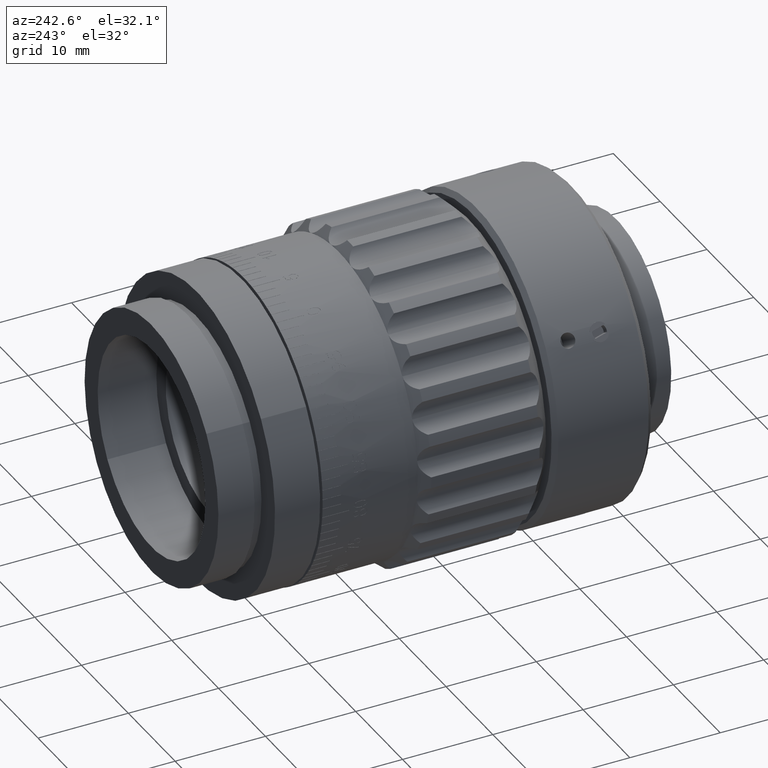
[diagram: clean part render]
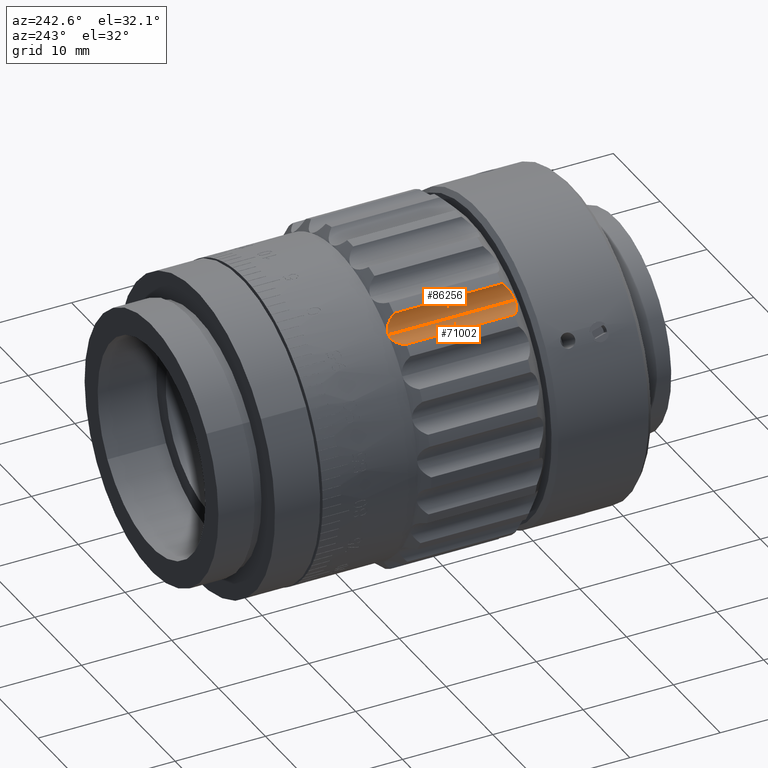
[diagram: same view with one multi-face feature highlighted, each face labeled with its STEP entity id]
A machine part, auxiliary view. The highlighted faces form ONE feature: a constant-radius fillet chain: 2 tangent blend faces with common blend radius 2 mm. The faces share edges in the B-rep.
Their STEP definitions:
[1] entity #71002 (Cylinder):
#9360 = LINE ( 'NONE', #52286, #81370 ) ;
#9796 = CARTESIAN_POINT ( 'NONE',  ( 16.63223147879429200, -27.21457821189756700, 6.199304480004530000 ) ) ;
#10090 = CARTESIAN_POINT ( 'NONE',  ( 16.16684370180052000, -14.48691178602993000, 5.328942705651685200 ) ) ;
#16118 = VECTOR ( 'NONE', #60525, 1000.000000000000000 ) ;
#17869 = CARTESIAN_POINT ( 'NONE',  ( 16.12161518754022200, -28.06311760304939200, 5.075327911002053000 ) ) ;
#18165 = CARTESIAN_POINT ( 'NONE',  ( 16.29970080731079900, -14.73653600034823800, 5.714012198316787300 ) ) ;
#18227 = CARTESIAN_POINT ( 'NONE',  ( 16.14847317714595600, -27.98511982904807400, 5.247368861514579500 ) ) ;
#18587 = CARTESIAN_POINT ( 'NONE',  ( 16.17925759034183000, -28.21457821189758500, 4.335219005467396700 ) ) ;
#24990 = DIRECTION ( 'NONE',  ( -0.9659258262890654300, 0.0000000000000000000, -0.2588190451025317900 ) ) ;
#26715 = CARTESIAN_POINT ( 'NONE',  ( 16.63223147879429200, -27.21457821189756700, 6.199304480004530000 ) ) ;
#29668 = ORIENTED_EDGE ( 'NONE', *, *, #34601, .F. ) ;
#33959 = CARTESIAN_POINT ( 'NONE',  ( 16.30037051080029500, -27.69155641625259500, 5.715310066604062400 ) ) ;
#34601 = EDGE_CURVE ( 'NONE', #100273, #102325, #88126, .T. ) ;
#36076 = CARTESIAN_POINT ( 'NONE',  ( 16.10784620434581200, -14.24627218124597100, 4.710899091893692200 ) ) ;
#40339 = VERTEX_POINT ( 'NONE', #26715 ) ;
#43127 = CARTESIAN_POINT ( 'NONE',  ( 16.23653850272437900, -27.79990188415146000, 5.569526982910725900 ) ) ;
#43410 = CARTESIAN_POINT ( 'NONE',  ( 16.12150813431316700, -14.36565298824324600, 5.074383856499653500 ) ) ;
#43477 = CARTESIAN_POINT ( 'NONE',  ( 16.10965957065909700, -28.15453043203921300, 4.802510653893822500 ) ) ;
#43847 = CARTESIAN_POINT ( 'NONE',  ( 16.13637495163443000, -28.20678417268108300, 4.522143724562461400 ) ) ;
#44237 = ORIENTED_EDGE ( 'NONE', *, *, #59485, .T. ) ;
#50212 = FACE_OUTER_BOUND ( 'NONE', #70083, .T. ) ;
#51571 = DIRECTION ( 'NONE',  ( -0.0000000000000000000, -1.000000000000000000, 0.0000000000000000000 ) ) ;
#51864 = CARTESIAN_POINT ( 'NONE',  ( 16.15464997671329100, -28.21457821189758900, 4.427055869782145200 ) ) ;
#52236 = CARTESIAN_POINT ( 'NONE',  ( 16.63223147879429600, -15.21457821189761400, 6.199304480004522900 ) ) ;
#52286 = CARTESIAN_POINT ( 'NONE',  ( 16.63223147879429200, -15.71457821189758300, 6.199304480004530900 ) ) ;
#52519 = CARTESIAN_POINT ( 'NONE',  ( 16.63223147879429600, -15.21457821189761400, 6.199304480004522900 ) ) ;
#53712 = B_SPLINE_CURVE_WITH_KNOTS ( 'NONE', 3,
 ( #64253, #81072, #36076, #77050, #43410, #74839, #10090, #102975, #18165, #77408, #94248, #52519 ),
 .UNSPECIFIED., .F., .F.,
 ( 4, 2, 2, 2, 2, 4 ),
 ( 0.002265277880669161300, 0.002830728109696412800, 0.003113453224210037700, 0.003396178338723663000, 0.003961628567750910500, 0.004527078796778158600 ),
 .UNSPECIFIED. ) ;
#54879 = VERTEX_POINT ( 'NONE', #52236 ) ;
#59196 = CARTESIAN_POINT ( 'NONE',  ( 16.53586250469498300, -27.34184645103451000, 6.093457096285350300 ) ) ;
#59485 = EDGE_CURVE ( 'NONE', #100273, #54879, #53712, .T. ) ;
#60525 = DIRECTION ( 'NONE',  ( -0.0000000000000000000, -1.000000000000000000, 0.0000000000000000000 ) ) ;
#60752 = CARTESIAN_POINT ( 'NONE',  ( 16.17925759034183000, -14.21457821189758700, 4.335219005467397600 ) ) ;
#64253 = CARTESIAN_POINT ( 'NONE',  ( 16.17925759034183000, -14.21457821189758700, 4.335219005467397600 ) ) ;
#67555 = ORIENTED_EDGE ( 'NONE', *, *, #94127, .T. ) ;
#67604 = CARTESIAN_POINT ( 'NONE',  ( 16.16709489081064900, -27.94165989775723000, 5.330053067588321100 ) ) ;
#68276 = ORIENTED_EDGE ( 'NONE', *, *, #75364, .T. ) ;
#68336 = CARTESIAN_POINT ( 'NONE',  ( 16.11397742356230000, -28.17661992392366700, 4.709988795762752600 ) ) ;
#68697 = CARTESIAN_POINT ( 'NONE',  ( 16.44964314242536600, -27.46322429761790900, 5.976302813085801800 ) ) ;
#70083 = EDGE_LOOP ( 'NONE', ( #29668, #44237, #68276, #67555 ) ) ;
#71002 = ADVANCED_FACE ( 'NONE', ( #50212 ), #96013, .F. ) ;
#74839 = CARTESIAN_POINT ( 'NONE',  ( 16.14829987043804100, -14.44360746031680000, 5.246514363392902800 ) ) ;
#75364 = EDGE_CURVE ( 'NONE', #54879, #40339, #9360, .T. ) ;
#77050 = CARTESIAN_POINT ( 'NONE',  ( 16.11334848507358000, -14.33096256588668100, 4.984217948090310400 ) ) ;
#77408 = CARTESIAN_POINT ( 'NONE',  ( 16.44948636153144200, -14.96573169895844700, 5.976154933047973300 ) ) ;
#78289 = AXIS2_PLACEMENT_3D ( 'NONE', #82448, #107672, #24990 ) ;
#79612 = B_SPLINE_CURVE_WITH_KNOTS ( 'NONE', 3,
 ( #9796, #59196, #68697, #33959, #43127, #67604, #18227, #17869, #101592, #43477, #68336, #43847, #51864, #18587 ),
 .UNSPECIFIED., .F., .F.,
 ( 4, 2, 2, 2, 2, 2, 4 ),
 ( 2.966078197712893400E-007, 0.0005665419260321120400, 0.001132787244244452700, 0.001415909903350626900, 0.001699032562456801000, 0.001982155221562975200, 0.002265277880669149600 ),
 .UNSPECIFIED. ) ;
#81072 = CARTESIAN_POINT ( 'NONE',  ( 16.13011146828293000, -14.21457821189758900, 4.518634829986212700 ) ) ;
#81370 = VECTOR ( 'NONE', #51571, 1000.000000000000000 ) ;
#81889 = CARTESIAN_POINT ( 'NONE',  ( 16.17925759034183000, -28.21457821189758500, 4.335219005467396700 ) ) ;
#82448 = CARTESIAN_POINT ( 'NONE',  ( 18.11110924291996200, -2.714578211897588300, 4.852857095672460400 ) ) ;
#88126 = LINE ( 'NONE', #102193, #16118 ) ;
#94127 = EDGE_CURVE ( 'NONE', #40339, #102325, #79612, .T. ) ;
#94248 = CARTESIAN_POINT ( 'NONE',  ( 16.53588253322231700, -15.08733642313465700, 6.093479094726634800 ) ) ;
#96013 = CYLINDRICAL_SURFACE ( 'NONE', #78289, 2.000000000000001300 ) ;
#100273 = VERTEX_POINT ( 'NONE', #60752 ) ;
#101592 = CARTESIAN_POINT ( 'NONE',  ( 16.11339678656624100, -28.09789642735480100, 4.985070924457826200 ) ) ;
#102193 = CARTESIAN_POINT ( 'NONE',  ( 16.17925759034183000, -2.714578211897588300, 4.335219005467396700 ) ) ;
#102325 = VERTEX_POINT ( 'NONE', #81889 ) ;
#102975 = CARTESIAN_POINT ( 'NONE',  ( 16.23568092375133900, -14.62764577598170100, 5.567050787408364300 ) ) ;
#107672 = DIRECTION ( 'NONE',  ( -0.0000000000000000000, -1.000000000000000000, 0.0000000000000000000 ) ) ;
[2] entity #86256 (Cylinder):
#1303 = DIRECTION ( 'NONE',  ( 0.0000000000000000000, 1.000000000000000000, -0.0000000000000000000 ) ) ;
#6298 = CARTESIAN_POINT ( 'NONE',  ( 17.23396025107167500, -14.96593212617727000, 3.049191514372357600 ) ) ;
#7007 = CARTESIAN_POINT ( 'NONE',  ( 16.84601830433874900, -14.62925453964371900, 3.294917397098975400 ) ) ;
#8897 = B_SPLINE_CURVE_WITH_KNOTS ( 'NONE', 3,
 ( #48733, #57147, #6298, #73631, #7007, #30838, #82014, #106510, #15107, #106144, #107236, #80945, #90093, #64480 ),
 .UNSPECIFIED., .F., .F.,
 ( 4, 2, 2, 2, 2, 2, 4 ),
 ( 2.966078197780171100E-007, 0.0005665419260321249500, 0.001132787244244472000, 0.001415909903350643800, 0.001699032562456815300, 0.001982155221562988200, 0.002265277880669161300 ),
 .UNSPECIFIED. ) ;
#9988 = CARTESIAN_POINT ( 'NONE',  ( 16.30525355916298500, -28.18288424254920700, 3.974164813928291500 ) ) ;
#10753 = ORIENTED_EDGE ( 'NONE', *, *, #65712, .T. ) ;
#15107 = CARTESIAN_POINT ( 'NONE',  ( 16.44714642065374100, -14.33125999644037300, 3.739500333035834500 ) ) ;
#16118 = VECTOR ( 'NONE', #60525, 1000.000000000000000 ) ;
#16684 = B_SPLINE_CURVE_WITH_KNOTS ( 'NONE', 3,
 ( #59025, #83523, #9988, #42223, #101427, #100698, #93045, #75860, #50595, #59384, #68159, #51697 ),
 .UNSPECIFIED., .F., .F.,
 ( 4, 2, 2, 2, 2, 4 ),
 ( 0.002265277880669149600, 0.002830728109696402400, 0.003113453224210026800, 0.003396178338723652100, 0.003961628567750896700, 0.004527078796778142100 ),
 .UNSPECIFIED. ) ;
#30838 = CARTESIAN_POINT ( 'NONE',  ( 16.66614141462970600, -14.48749652603793300, 3.467586085355032200 ) ) ;
#31033 = FACE_OUTER_BOUND ( 'NONE', #87602, .T. ) ;
#33153 = DIRECTION ( 'NONE',  ( -0.9659258262890654300, 0.0000000000000000000, -0.2588190451025317900 ) ) ;
#33878 = DIRECTION ( 'NONE',  ( -0.0000000000000000000, -1.000000000000000000, 0.0000000000000000000 ) ) ;
#34601 = EDGE_CURVE ( 'NONE', #100273, #102325, #88126, .T. ) ;
#37619 = VECTOR ( 'NONE', #1303, 1000.000000000000000 ) ;
#39496 = AXIS2_PLACEMENT_3D ( 'NONE', #41580, #33878, #33153 ) ;
#41580 = CARTESIAN_POINT ( 'NONE',  ( 18.11110924291996200, -2.714578211897588300, 4.852857095672460400 ) ) ;
#42223 = CARTESIAN_POINT ( 'NONE',  ( 16.44667810215028700, -28.09819385790849500, 3.740214881492595300 ) ) ;
#48733 = CARTESIAN_POINT ( 'NONE',  ( 17.50358722226128100, -15.21457821189761400, 2.947360573918934800 ) ) ;
#50595 = CARTESIAN_POINT ( 'NONE',  ( 16.97296107237519900, -27.69262042344693600, 3.201370682379270700 ) ) ;
#51697 = CARTESIAN_POINT ( 'NONE',  ( 17.50358722226128100, -27.21457821189756700, 2.947360573918931700 ) ) ;
#54297 = ORIENTED_EDGE ( 'NONE', *, *, #96825, .T. ) ;
#54567 = VERTEX_POINT ( 'NONE', #86127 ) ;
#57147 = CARTESIAN_POINT ( 'NONE',  ( 17.36720555069503600, -15.08730997276066600, 2.990842610094197600 ) ) ;
#58589 = LINE ( 'NONE', #101514, #37619 ) ;
#59025 = CARTESIAN_POINT ( 'NONE',  ( 16.17925759034183000, -28.21457821189758500, 4.335219005467396700 ) ) ;
#59384 = CARTESIAN_POINT ( 'NONE',  ( 17.23375053481580800, -27.46342472483674500, 3.049241191794865200 ) ) ;
#60525 = DIRECTION ( 'NONE',  ( -0.0000000000000000000, -1.000000000000000000, 0.0000000000000000000 ) ) ;
#60752 = CARTESIAN_POINT ( 'NONE',  ( 16.17925759034183000, -14.21457821189758700, 4.335219005467397600 ) ) ;
#64480 = CARTESIAN_POINT ( 'NONE',  ( 16.17925759034183000, -14.21457821189758700, 4.335219005467397600 ) ) ;
#65712 = EDGE_CURVE ( 'NONE', #102325, #54567, #16684, .T. ) ;
#68159 = CARTESIAN_POINT ( 'NONE',  ( 17.36723389512915000, -27.34182000066051900, 2.990833573148871800 ) ) ;
#71947 = CARTESIAN_POINT ( 'NONE',  ( 17.50358722226128100, -15.21457821189761400, 2.947360573918934800 ) ) ;
#73631 = CARTESIAN_POINT ( 'NONE',  ( 16.97418998675373600, -14.73760000754258200, 3.200581547216472300 ) ) ;
#74203 = ORIENTED_EDGE ( 'NONE', *, *, #97143, .T. ) ;
#75860 = CARTESIAN_POINT ( 'NONE',  ( 16.84403752141116700, -27.80151064781347300, 3.296633055822235200 ) ) ;
#78180 = CYLINDRICAL_SURFACE ( 'NONE', #39496, 2.000000000000001300 ) ;
#80945 = CARTESIAN_POINT ( 'NONE',  ( 16.23558249538744000, -14.22237225111410000, 4.151896130782103200 ) ) ;
#81889 = CARTESIAN_POINT ( 'NONE',  ( 16.17925759034183000, -28.21457821189758500, 4.335219005467396700 ) ) ;
#82014 = CARTESIAN_POINT ( 'NONE',  ( 16.60867243449721500, -14.44403659474709700, 3.529881851474292500 ) ) ;
#82523 = ORIENTED_EDGE ( 'NONE', *, *, #34601, .T. ) ;
#83523 = CARTESIAN_POINT ( 'NONE',  ( 16.22840371240073400, -28.21457821189758900, 4.151803180948582500 ) ) ;
#86127 = CARTESIAN_POINT ( 'NONE',  ( 17.50358722226128100, -27.21457821189756700, 2.947360573918931700 ) ) ;
#86256 = ADVANCED_FACE ( 'NONE', ( #31033 ), #78180, .F. ) ;
#87602 = EDGE_LOOP ( 'NONE', ( #74203, #82523, #10753, #54297 ) ) ;
#88126 = LINE ( 'NONE', #102193, #16118 ) ;
#90093 = CARTESIAN_POINT ( 'NONE',  ( 16.20386520397037000, -14.21457821189758700, 4.243382141152651800 ) ) ;
#93045 = CARTESIAN_POINT ( 'NONE',  ( 16.66536869759746900, -27.94224463776524900, 3.468422092494489700 ) ) ;
#96825 = EDGE_CURVE ( 'NONE', #54567, #101776, #58589, .T. ) ;
#97143 = EDGE_CURVE ( 'NONE', #101776, #100273, #8897, .T. ) ;
#100273 = VERTEX_POINT ( 'NONE', #60752 ) ;
#100698 = CARTESIAN_POINT ( 'NONE',  ( 16.60809509742467700, -27.98554896347837900, 3.530535215201192800 ) ) ;
#101427 = CARTESIAN_POINT ( 'NONE',  ( 16.49882751988241500, -28.06350343555192200, 3.666208738874598100 ) ) ;
#101514 = CARTESIAN_POINT ( 'NONE',  ( 17.50358722226128100, -15.71457821189758300, 2.947360573918931700 ) ) ;
#101776 = VERTEX_POINT ( 'NONE', #71947 ) ;
#102193 = CARTESIAN_POINT ( 'NONE',  ( 16.17925759034183000, -2.714578211897588300, 4.335219005467396700 ) ) ;
#102325 = VERTEX_POINT ( 'NONE', #81889 ) ;
#106144 = CARTESIAN_POINT ( 'NONE',  ( 16.35262976145672200, -14.27462599175595400, 3.895733557112445400 ) ) ;
#106510 = CARTESIAN_POINT ( 'NONE',  ( 16.49939225794780000, -14.36603882074578000, 3.665444690306493200 ) ) ;
#107236 = CARTESIAN_POINT ( 'NONE',  ( 16.31010820269515800, -14.25253649987150700, 3.978018763110891900 ) ) ;